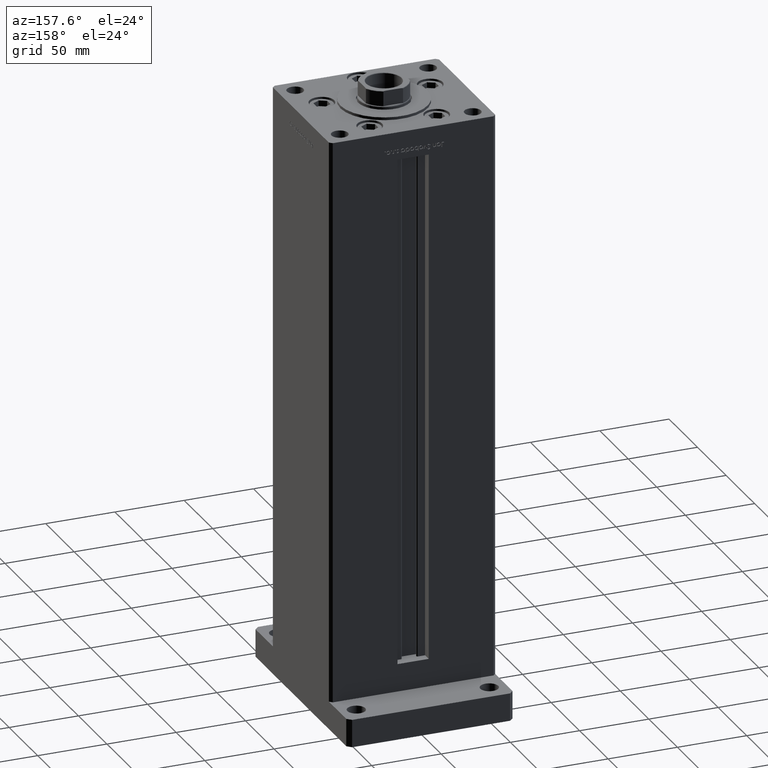
[diagram: clean part render]
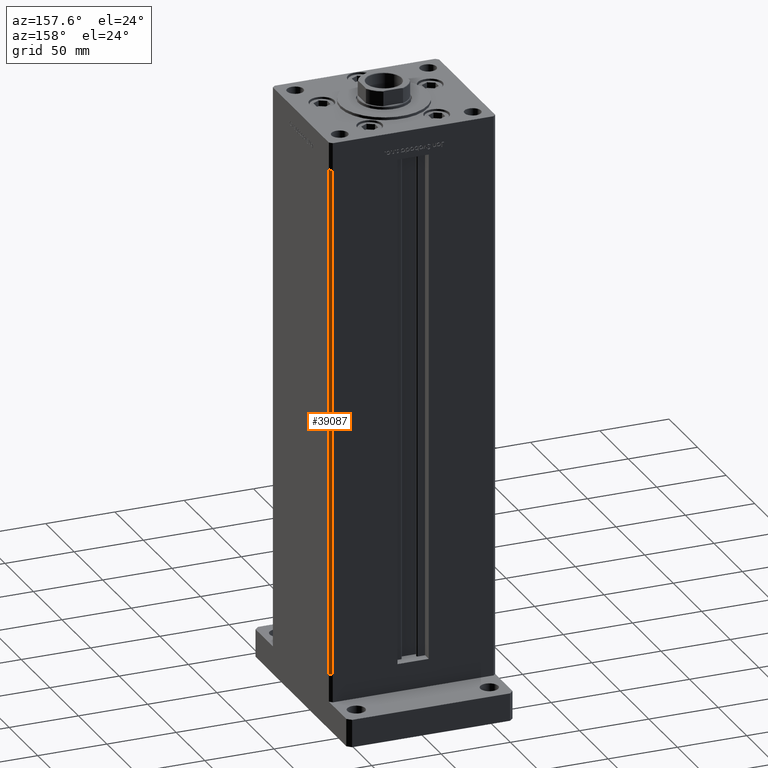
[diagram: same view with one face highlighted and labeled with its STEP entity id]
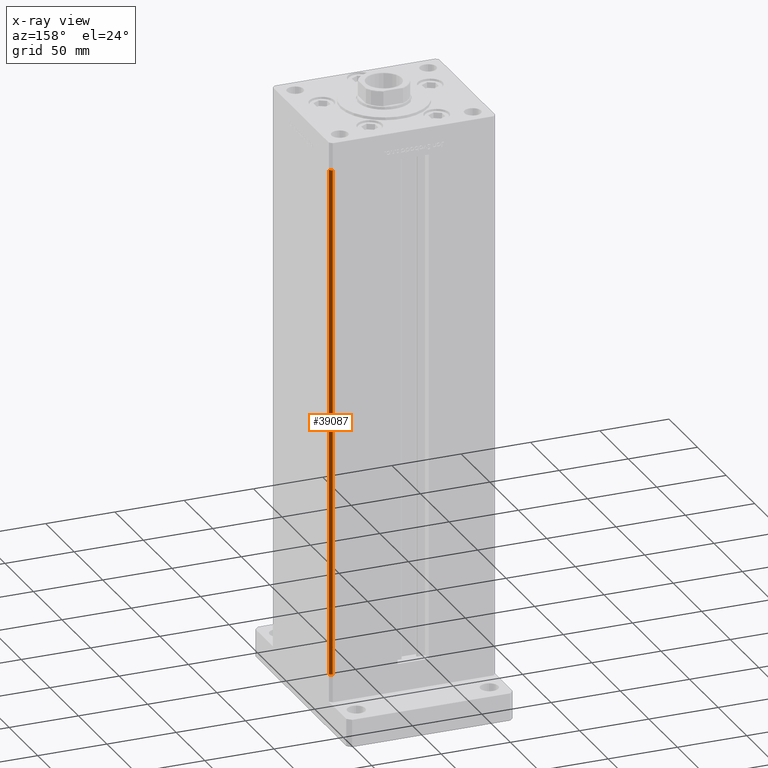
[diagram: x-ray of the same camera — body ghosted, the highlighted face saturated]
A machine part, auxiliary view. The second image highlights one B-rep face of the part: STEP entity #39087.
The next image is the same camera in x-ray: the body ghosted, the highlighted face saturated — about 0% of this face is hidden behind the body in this view.
In plain terms, the highlighted planar face has unit normal (0.7071, 0.7071, 0).
Its self-contained STEP definition (entity closure, byte-faithful):
#914 = ORIENTED_EDGE ( 'NONE', *, *, #11768, .T. ) ;
#1222 = CARTESIAN_POINT ( 'NONE',  ( 57.99999999999999289, 51.00000000000000711, 368.5000000000000000 ) ) ;
#2531 = DIRECTION ( 'NONE',  ( 0.7071067811865500152, -0.7071067811865451302, 0.000000000000000000 ) ) ;
#5949 = DIRECTION ( 'NONE',  ( -0.000000000000000000, -0.000000000000000000, -1.000000000000000000 ) ) ;
#6427 = CARTESIAN_POINT ( 'NONE',  ( 57.99999999999999289, 51.00000000000000711, 368.5000000000000000 ) ) ;
#6454 = AXIS2_PLACEMENT_3D ( 'NONE', #6427, #24570, #16193 ) ;
#6611 = LINE ( 'NONE', #23153, #35260 ) ;
#10319 = EDGE_LOOP ( 'NONE', ( #27521, #51067, #914, #16326 ) ) ;
#11768 = EDGE_CURVE ( 'NONE', #23843, #35646, #6611, .T. ) ;
#13667 = VERTEX_POINT ( 'NONE', #15317 ) ;
#14584 = FACE_OUTER_BOUND ( 'NONE', #10319, .T. ) ;
#15317 = CARTESIAN_POINT ( 'NONE',  ( 60.00000000000001421, 49.00000000000000000, 0.000000000000000000 ) ) ;
#15931 = CARTESIAN_POINT ( 'NONE',  ( 57.99999999999999289, 51.00000000000000711, 0.000000000000000000 ) ) ;
#16193 = DIRECTION ( 'NONE',  ( -0.7071067811865500152, 0.7071067811865451302, 0.000000000000000000 ) ) ;
#16326 = ORIENTED_EDGE ( 'NONE', *, *, #24178, .T. ) ;
#16580 = VECTOR ( 'NONE', #5949, 1000.000000000000000 ) ;
#16711 = CARTESIAN_POINT ( 'NONE',  ( 57.99999999999999289, 51.00000000000000711, 368.5000000000000000 ) ) ;
#17041 = EDGE_CURVE ( 'NONE', #22388, #13667, #28656, .T. ) ;
#21441 = VECTOR ( 'NONE', #48053, 1000.000000000000000 ) ;
#22388 = VERTEX_POINT ( 'NONE', #39866 ) ;
#23153 = CARTESIAN_POINT ( 'NONE',  ( 57.99999999999999289, 51.00000000000000711, 368.5000000000000000 ) ) ;
#23843 = VERTEX_POINT ( 'NONE', #16711 ) ;
#24178 = EDGE_CURVE ( 'NONE', #35646, #13667, #30345, .T. ) ;
#24570 = DIRECTION ( 'NONE',  ( 0.7071067811865451302, 0.7071067811865500152, -0.000000000000000000 ) ) ;
#27521 = ORIENTED_EDGE ( 'NONE', *, *, #17041, .F. ) ;
#28656 = LINE ( 'NONE', #15931, #43142 ) ;
#30345 = LINE ( 'NONE', #30884, #16580 ) ;
#30884 = CARTESIAN_POINT ( 'NONE',  ( 60.00000000000001421, 49.00000000000000000, 368.5000000000000000 ) ) ;
#31495 = LINE ( 'NONE', #1222, #21441 ) ;
#35260 = VECTOR ( 'NONE', #2531, 1000.000000000000114 ) ;
#35632 = CARTESIAN_POINT ( 'NONE',  ( 60.00000000000001421, 49.00000000000000000, 368.5000000000000000 ) ) ;
#35646 = VERTEX_POINT ( 'NONE', #35632 ) ;
#39087 = ADVANCED_FACE ( 'NONE', ( #14584 ), #43557, .T. ) ;
#39866 = CARTESIAN_POINT ( 'NONE',  ( 57.99999999999999289, 51.00000000000000711, 0.000000000000000000 ) ) ;
#43142 = VECTOR ( 'NONE', #45185, 1000.000000000000114 ) ;
#43557 = PLANE ( 'NONE',  #6454 ) ;
#45185 = DIRECTION ( 'NONE',  ( 0.7071067811865500152, -0.7071067811865451302, 0.000000000000000000 ) ) ;
#46024 = EDGE_CURVE ( 'NONE', #23843, #22388, #31495, .T. ) ;
#48053 = DIRECTION ( 'NONE',  ( -0.000000000000000000, -0.000000000000000000, -1.000000000000000000 ) ) ;
#51067 = ORIENTED_EDGE ( 'NONE', *, *, #46024, .F. ) ;